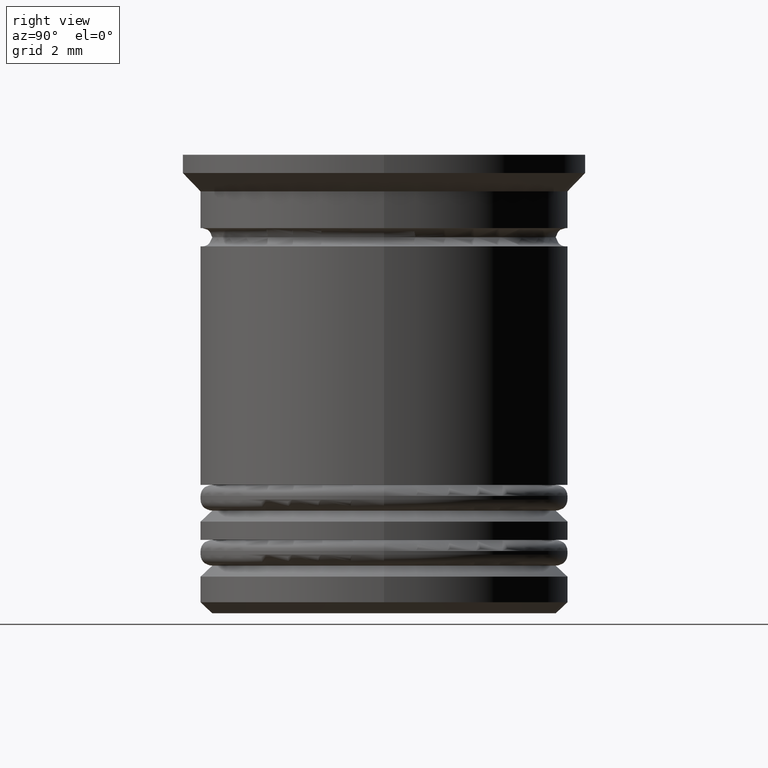
[diagram: clean part render]
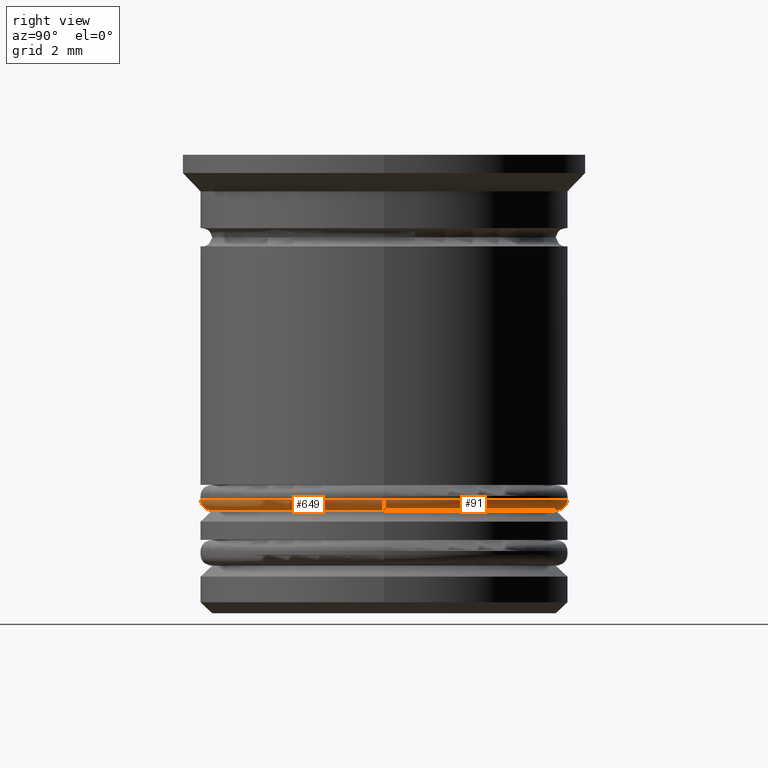
[diagram: same view with one multi-face feature highlighted, each face labeled with its STEP entity id]
A machine part, right view. The highlighted faces form ONE feature: a constant-radius fillet chain: 2 tangent blend faces with common blend radius 0.3 mm. The faces share edges in the B-rep.
Their STEP definitions:
[1] entity #649 (Torus):
#141 = CARTESIAN_POINT ( 'NONE',  ( 0.000000000000000000, 0.000000000000000000, -9.400000000000007461 ) ) ;
#153 = AXIS2_PLACEMENT_3D ( 'NONE', #1866, #212, #862 ) ;
#212 = DIRECTION ( 'NONE',  ( 0.000000000000000000, 0.000000000000000000, 1.000000000000000000 ) ) ;
#232 = AXIS2_PLACEMENT_3D ( 'NONE', #2026, #293, #929 ) ;
#238 = FACE_OUTER_BOUND ( 'NONE', #1266, .T. ) ;
#293 = DIRECTION ( 'NONE',  ( 1.224646799147353207E-16, 1.000000000000000000, -0.000000000000000000 ) ) ;
#360 = VERTEX_POINT ( 'NONE', #1690 ) ;
#475 = DIRECTION ( 'NONE',  ( 1.000000000000000000, 0.000000000000000000, 0.000000000000000000 ) ) ;
#506 = DIRECTION ( 'NONE',  ( -0.000000000000000000, -0.000000000000000000, -1.000000000000000000 ) ) ;
#513 = VERTEX_POINT ( 'NONE', #1819 ) ;
#607 = DIRECTION ( 'NONE',  ( 0.000000000000000000, -1.000000000000000000, 0.000000000000000000 ) ) ;
#614 = DIRECTION ( 'NONE',  ( 0.000000000000000000, 0.000000000000000000, -1.000000000000000000 ) ) ;
#635 = CARTESIAN_POINT ( 'NONE',  ( -4.700000000000001066, 5.939536975864663955E-16, -9.700000000000006395 ) ) ;
#649 = ADVANCED_FACE ( 'NONE', ( #238 ), #741, .T. ) ;
#669 = ORIENTED_EDGE ( 'NONE', *, *, #882, .T. ) ;
#741 = TOROIDAL_SURFACE ( 'NONE', #153, 4.700000000000001066, 0.2999999999999999889 ) ;
#812 = CARTESIAN_POINT ( 'NONE',  ( 0.000000000000000000, 0.000000000000000000, -9.700000000000006395 ) ) ;
#819 = DIRECTION ( 'NONE',  ( 1.000000000000000000, 0.000000000000000000, 0.000000000000000000 ) ) ;
#852 = ORIENTED_EDGE ( 'NONE', *, *, #1306, .F. ) ;
#862 = DIRECTION ( 'NONE',  ( 1.000000000000000000, 0.000000000000000000, 0.000000000000000000 ) ) ;
#875 = ORIENTED_EDGE ( 'NONE', *, *, #1638, .F. ) ;
#882 = EDGE_CURVE ( 'NONE', #513, #360, #1744, .T. ) ;
#899 = VERTEX_POINT ( 'NONE', #635 ) ;
#929 = DIRECTION ( 'NONE',  ( -1.000000000000000000, 1.224646799147353207E-16, 0.000000000000000000 ) ) ;
#935 = CARTESIAN_POINT ( 'NONE',  ( 4.700000000000001066, 0.000000000000000000, -9.400000000000007461 ) ) ;
#944 = CIRCLE ( 'NONE', #232, 0.2999999999999999334 ) ;
#976 = CIRCLE ( 'NONE', #1719, 5.000000000000000888 ) ;
#1052 = AXIS2_PLACEMENT_3D ( 'NONE', #812, #506, #475 ) ;
#1097 = ORIENTED_EDGE ( 'NONE', *, *, #1787, .F. ) ;
#1266 = EDGE_LOOP ( 'NONE', ( #875, #852, #669, #1097 ) ) ;
#1306 = EDGE_CURVE ( 'NONE', #513, #899, #1481, .T. ) ;
#1362 = VERTEX_POINT ( 'NONE', #1615 ) ;
#1481 = CIRCLE ( 'NONE', #1052, 4.700000000000001066 ) ;
#1582 = AXIS2_PLACEMENT_3D ( 'NONE', #935, #607, #614 ) ;
#1615 = CARTESIAN_POINT ( 'NONE',  ( -5.000000000000000888, 6.123233995736767268E-16, -9.400000000000007461 ) ) ;
#1638 = EDGE_CURVE ( 'NONE', #899, #1362, #944, .T. ) ;
#1690 = CARTESIAN_POINT ( 'NONE',  ( 5.000000000000000888, 0.000000000000000000, -9.400000000000007461 ) ) ;
#1719 = AXIS2_PLACEMENT_3D ( 'NONE', #141, #1756, #819 ) ;
#1744 = CIRCLE ( 'NONE', #1582, 0.2999999999999999334 ) ;
#1756 = DIRECTION ( 'NONE',  ( 0.000000000000000000, 0.000000000000000000, 1.000000000000000000 ) ) ;
#1787 = EDGE_CURVE ( 'NONE', #1362, #360, #976, .T. ) ;
#1819 = CARTESIAN_POINT ( 'NONE',  ( 4.700000000000001066, 0.000000000000000000, -9.700000000000006395 ) ) ;
#1866 = CARTESIAN_POINT ( 'NONE',  ( 0.000000000000000000, 0.000000000000000000, -9.400000000000007461 ) ) ;
#2026 = CARTESIAN_POINT ( 'NONE',  ( -4.700000000000001066, 5.755839955992560641E-16, -9.400000000000007461 ) ) ;
[2] entity #91 (Torus):
#91 = ADVANCED_FACE ( 'NONE', ( #850 ), #1840, .T. ) ;
#232 = AXIS2_PLACEMENT_3D ( 'NONE', #2026, #293, #929 ) ;
#293 = DIRECTION ( 'NONE',  ( 1.224646799147353207E-16, 1.000000000000000000, -0.000000000000000000 ) ) ;
#360 = VERTEX_POINT ( 'NONE', #1690 ) ;
#462 = DIRECTION ( 'NONE',  ( 0.000000000000000000, 0.000000000000000000, 1.000000000000000000 ) ) ;
#471 = CIRCLE ( 'NONE', #1775, 5.000000000000000888 ) ;
#480 = DIRECTION ( 'NONE',  ( 1.000000000000000000, 0.000000000000000000, 0.000000000000000000 ) ) ;
#513 = VERTEX_POINT ( 'NONE', #1819 ) ;
#546 = DIRECTION ( 'NONE',  ( 1.000000000000000000, 0.000000000000000000, 0.000000000000000000 ) ) ;
#607 = DIRECTION ( 'NONE',  ( 0.000000000000000000, -1.000000000000000000, 0.000000000000000000 ) ) ;
#614 = DIRECTION ( 'NONE',  ( 0.000000000000000000, 0.000000000000000000, -1.000000000000000000 ) ) ;
#635 = CARTESIAN_POINT ( 'NONE',  ( -4.700000000000001066, 5.939536975864663955E-16, -9.700000000000006395 ) ) ;
#850 = FACE_OUTER_BOUND ( 'NONE', #1131, .T. ) ;
#882 = EDGE_CURVE ( 'NONE', #513, #360, #1744, .T. ) ;
#899 = VERTEX_POINT ( 'NONE', #635 ) ;
#929 = DIRECTION ( 'NONE',  ( -1.000000000000000000, 1.224646799147353207E-16, 0.000000000000000000 ) ) ;
#935 = CARTESIAN_POINT ( 'NONE',  ( 4.700000000000001066, 0.000000000000000000, -9.400000000000007461 ) ) ;
#944 = CIRCLE ( 'NONE', #232, 0.2999999999999999334 ) ;
#1024 = DIRECTION ( 'NONE',  ( 0.000000000000000000, 0.000000000000000000, 1.000000000000000000 ) ) ;
#1083 = AXIS2_PLACEMENT_3D ( 'NONE', #1717, #1176, #1493 ) ;
#1131 = EDGE_LOOP ( 'NONE', ( #1953, #1782, #1883, #1173 ) ) ;
#1173 = ORIENTED_EDGE ( 'NONE', *, *, #882, .F. ) ;
#1176 = DIRECTION ( 'NONE',  ( -0.000000000000000000, -0.000000000000000000, -1.000000000000000000 ) ) ;
#1362 = VERTEX_POINT ( 'NONE', #1615 ) ;
#1493 = DIRECTION ( 'NONE',  ( 1.000000000000000000, 0.000000000000000000, 0.000000000000000000 ) ) ;
#1582 = AXIS2_PLACEMENT_3D ( 'NONE', #935, #607, #614 ) ;
#1615 = CARTESIAN_POINT ( 'NONE',  ( -5.000000000000000888, 6.123233995736767268E-16, -9.400000000000007461 ) ) ;
#1638 = EDGE_CURVE ( 'NONE', #899, #1362, #944, .T. ) ;
#1690 = CARTESIAN_POINT ( 'NONE',  ( 5.000000000000000888, 0.000000000000000000, -9.400000000000007461 ) ) ;
#1717 = CARTESIAN_POINT ( 'NONE',  ( 0.000000000000000000, 0.000000000000000000, -9.700000000000006395 ) ) ;
#1744 = CIRCLE ( 'NONE', #1582, 0.2999999999999999334 ) ;
#1765 = CARTESIAN_POINT ( 'NONE',  ( 0.000000000000000000, 0.000000000000000000, -9.400000000000007461 ) ) ;
#1775 = AXIS2_PLACEMENT_3D ( 'NONE', #1923, #462, #480 ) ;
#1782 = ORIENTED_EDGE ( 'NONE', *, *, #1638, .T. ) ;
#1785 = EDGE_CURVE ( 'NONE', #360, #1362, #471, .T. ) ;
#1819 = CARTESIAN_POINT ( 'NONE',  ( 4.700000000000001066, 0.000000000000000000, -9.700000000000006395 ) ) ;
#1840 = TOROIDAL_SURFACE ( 'NONE', #2040, 4.700000000000001066, 0.2999999999999999889 ) ;
#1883 = ORIENTED_EDGE ( 'NONE', *, *, #1785, .F. ) ;
#1900 = EDGE_CURVE ( 'NONE', #899, #513, #1915, .T. ) ;
#1915 = CIRCLE ( 'NONE', #1083, 4.700000000000001066 ) ;
#1923 = CARTESIAN_POINT ( 'NONE',  ( 0.000000000000000000, 0.000000000000000000, -9.400000000000007461 ) ) ;
#1953 = ORIENTED_EDGE ( 'NONE', *, *, #1900, .F. ) ;
#2026 = CARTESIAN_POINT ( 'NONE',  ( -4.700000000000001066, 5.755839955992560641E-16, -9.400000000000007461 ) ) ;
#2040 = AXIS2_PLACEMENT_3D ( 'NONE', #1765, #1024, #546 ) ;